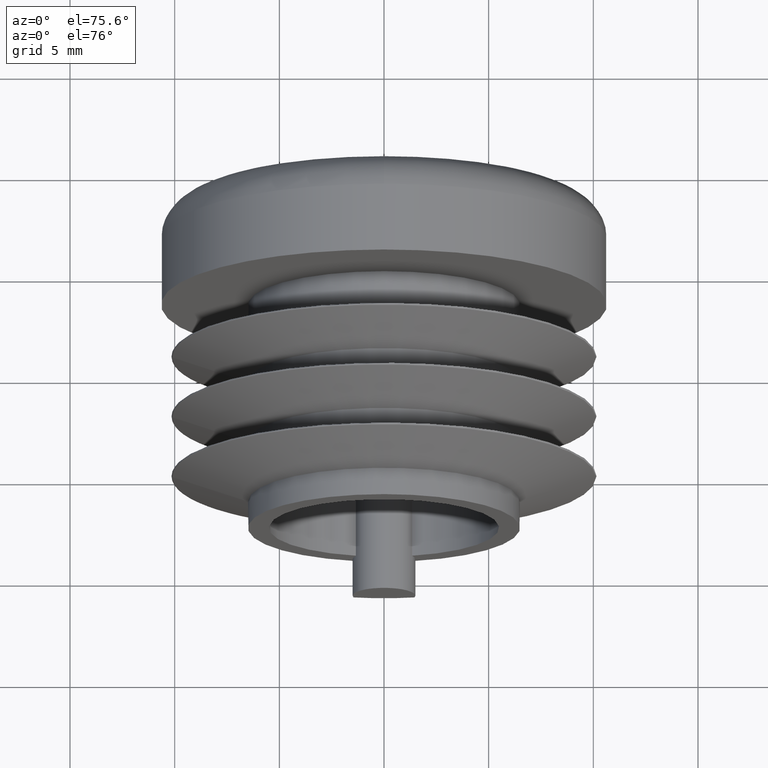
[diagram: clean part render]
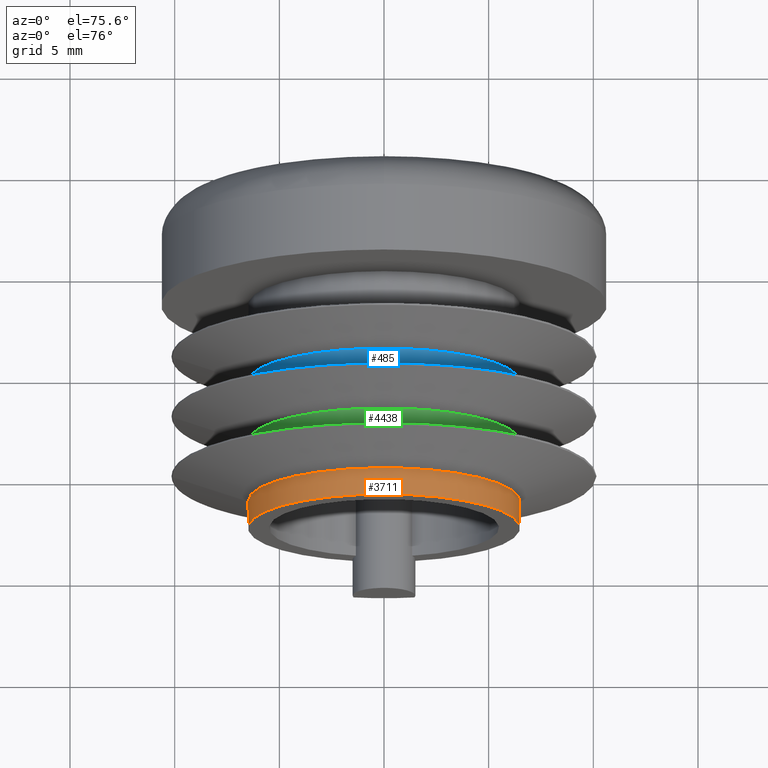
[diagram: same view with three faces highlighted in distinct colors, each labeled with its STEP entity id]
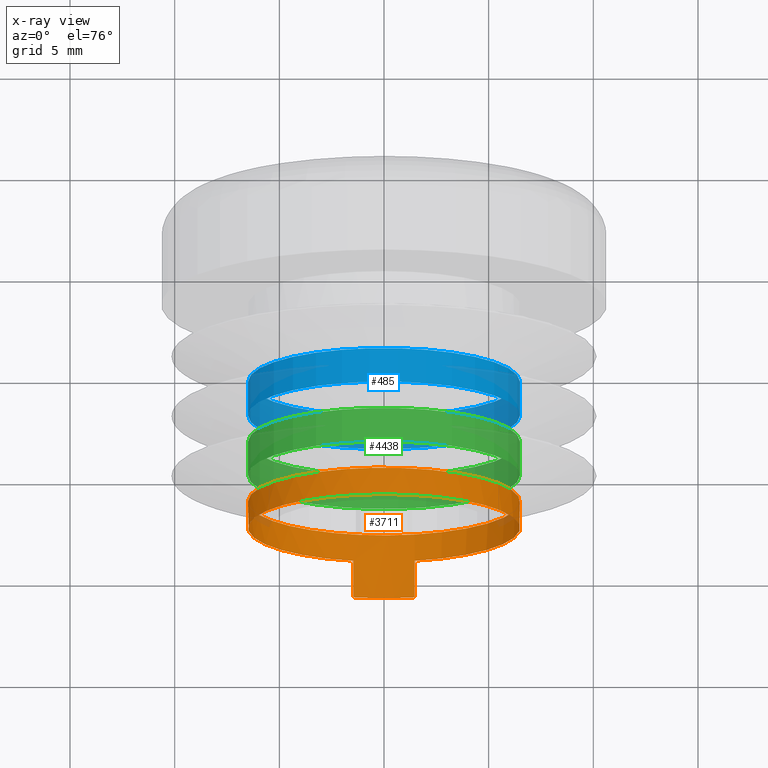
[diagram: x-ray of the same camera — body ghosted, the three highlighted faces saturated]
A machine part, auxiliary view with three faces highlighted in distinct colors.
The next image is the same camera in x-ray (body ghosted, the three faces saturated) — at least one of them is partly hidden behind the body in this view.
Their STEP definitions:

[orange] entity #3711 — the highlighted cylindrical surface (bore or boss wall) has radius 6.5 mm, axis along (-0, -1, -0).
#584 = LINE ( 'NONE', #5880, #4761 ) ;
#595 = CYLINDRICAL_SURFACE ( 'NONE', #3269, 6.499999999999999112 ) ;
#622 = VECTOR ( 'NONE', #2944, 1000.000000000000000 ) ;
#624 = EDGE_CURVE ( 'NONE', #7324, #8690, #8908, .T. ) ;
#944 = EDGE_CURVE ( 'NONE', #7324, #9304, #1581, .T. ) ;
#1166 = CARTESIAN_POINT ( 'NONE',  ( 1.462494064565357021, 0.000000000000000000, -6.333333333333333925 ) ) ;
#1396 = CARTESIAN_POINT ( 'NONE',  ( -6.500000000000012434, 1.299999999999838618, 0.000000000000000000 ) ) ;
#1581 = LINE ( 'NONE', #8050, #622 ) ;
#2475 = AXIS2_PLACEMENT_3D ( 'NONE', #2995, #6040, #9149 ) ;
#2515 = EDGE_LOOP ( 'NONE', ( #6553, #6354, #3123, #9293 ) ) ;
#2534 = DIRECTION ( 'NONE',  ( 0.000000000000000000, 0.000000000000000000, -1.000000000000000000 ) ) ;
#2944 = DIRECTION ( 'NONE',  ( -0.000000000000000000, 1.000000000000000000, -0.000000000000000000 ) ) ;
#2995 = CARTESIAN_POINT ( 'NONE',  ( -1.361677722148724505E-14, 1.299999999999906786, 0.000000000000000000 ) ) ;
#3123 = ORIENTED_EDGE ( 'NONE', *, *, #624, .F. ) ;
#3259 = ORIENTED_EDGE ( 'NONE', *, *, #5224, .F. ) ;
#3269 = AXIS2_PLACEMENT_3D ( 'NONE', #7530, #6032, #9779 ) ;
#3283 = CARTESIAN_POINT ( 'NONE',  ( 0.000000000000000000, -1.800000000000000044, 0.000000000000000000 ) ) ;
#3673 = CARTESIAN_POINT ( 'NONE',  ( 0.000000000000000000, 0.000000000000000000, 0.000000000000000000 ) ) ;
#3702 = DIRECTION ( 'NONE',  ( 0.000000000000000000, 0.000000000000000000, -1.000000000000000000 ) ) ;
#3711 = ADVANCED_FACE ( 'NONE', ( #5987, #6573 ), #595, .T. ) ;
#3948 = AXIS2_PLACEMENT_3D ( 'NONE', #3283, #6280, #2534 ) ;
#4711 = EDGE_CURVE ( 'NONE', #8690, #8068, #584, .T. ) ;
#4761 = VECTOR ( 'NONE', #5072, 1000.000000000000000 ) ;
#5072 = DIRECTION ( 'NONE',  ( -0.000000000000000000, 1.000000000000000000, -0.000000000000000000 ) ) ;
#5224 = EDGE_CURVE ( 'NONE', #8227, #8227, #8142, .T. ) ;
#5309 = AXIS2_PLACEMENT_3D ( 'NONE', #3673, #6019, #3702 ) ;
#5880 = CARTESIAN_POINT ( 'NONE',  ( 1.462494064565357021, -1.800000000000000044, -6.333333333333333925 ) ) ;
#5987 = FACE_OUTER_BOUND ( 'NONE', #8998, .T. ) ;
#6019 = DIRECTION ( 'NONE',  ( -0.000000000000000000, -1.000000000000000000, -0.000000000000000000 ) ) ;
#6032 = DIRECTION ( 'NONE',  ( -0.000000000000000000, -1.000000000000000000, -0.000000000000000000 ) ) ;
#6040 = DIRECTION ( 'NONE',  ( -1.047444401652940164E-14, 1.000000000000000000, 0.000000000000000000 ) ) ;
#6280 = DIRECTION ( 'NONE',  ( 0.000000000000000000, -1.000000000000000000, 0.000000000000000000 ) ) ;
#6354 = ORIENTED_EDGE ( 'NONE', *, *, #4711, .F. ) ;
#6553 = ORIENTED_EDGE ( 'NONE', *, *, #9577, .F. ) ;
#6573 = FACE_OUTER_BOUND ( 'NONE', #2515, .T. ) ;
#7324 = VERTEX_POINT ( 'NONE', #9313 ) ;
#7387 = CIRCLE ( 'NONE', #5309, 6.500000000000000000 ) ;
#7530 = CARTESIAN_POINT ( 'NONE',  ( 0.000000000000000000, 11.00000000000000000, 0.000000000000000000 ) ) ;
#7725 = CARTESIAN_POINT ( 'NONE',  ( 1.462494064565357021, -1.800000000000000044, -6.333333333333333925 ) ) ;
#8050 = CARTESIAN_POINT ( 'NONE',  ( -1.462494064565357021, -1.800000000000000044, -6.333333333333333925 ) ) ;
#8068 = VERTEX_POINT ( 'NONE', #1166 ) ;
#8142 = CIRCLE ( 'NONE', #2475, 6.499999999999999112 ) ;
#8227 = VERTEX_POINT ( 'NONE', #1396 ) ;
#8690 = VERTEX_POINT ( 'NONE', #7725 ) ;
#8908 = CIRCLE ( 'NONE', #3948, 6.500000000000001776 ) ;
#8998 = EDGE_LOOP ( 'NONE', ( #3259 ) ) ;
#9149 = DIRECTION ( 'NONE',  ( -1.000000000000000000, -1.047506098955225919E-14, 0.000000000000000000 ) ) ;
#9293 = ORIENTED_EDGE ( 'NONE', *, *, #944, .T. ) ;
#9304 = VERTEX_POINT ( 'NONE', #9380 ) ;
#9313 = CARTESIAN_POINT ( 'NONE',  ( -1.462494064565357021, -1.800000000000000044, -6.333333333333333925 ) ) ;
#9380 = CARTESIAN_POINT ( 'NONE',  ( -1.462494064565356577, 0.000000000000000000, -6.333333333333332149 ) ) ;
#9577 = EDGE_CURVE ( 'NONE', #8068, #9304, #7387, .T. ) ;
#9779 = DIRECTION ( 'NONE',  ( 0.000000000000000000, 0.000000000000000000, -1.000000000000000000 ) ) ;

[blue] entity #485 — the highlighted cylindrical surface (bore or boss wall) has radius 6.5 mm, axis along (-0, -1, -0).
#311 = CARTESIAN_POINT ( 'NONE',  ( 0.000000000000000000, 11.00000000000000000, 0.000000000000000000 ) ) ;
#485 = ADVANCED_FACE ( 'NONE', ( #4088, #8669 ), #1815, .T. ) ;
#691 = AXIS2_PLACEMENT_3D ( 'NONE', #1149, #4824, #4156 ) ;
#794 = VERTEX_POINT ( 'NONE', #9073 ) ;
#1149 = CARTESIAN_POINT ( 'NONE',  ( 0.000000000000000000, 5.550000000000023803, 0.000000000000000000 ) ) ;
#1815 = CYLINDRICAL_SURFACE ( 'NONE', #5620, 6.499999999999999112 ) ;
#2370 = CIRCLE ( 'NONE', #691, 6.499999999999999112 ) ;
#2535 = EDGE_LOOP ( 'NONE', ( #5906 ) ) ;
#2956 = CARTESIAN_POINT ( 'NONE',  ( -7.541599691901261449E-14, 7.200000000000088107, 0.000000000000000000 ) ) ;
#3476 = EDGE_CURVE ( 'NONE', #794, #794, #7927, .T. ) ;
#3652 = CARTESIAN_POINT ( 'NONE',  ( -6.499999999999999112, 5.549999999999956302, 0.000000000000000000 ) ) ;
#4088 = FACE_OUTER_BOUND ( 'NONE', #6346, .T. ) ;
#4156 = DIRECTION ( 'NONE',  ( -1.000000000000000000, -1.040834085586084414E-14, 0.000000000000000000 ) ) ;
#4470 = DIRECTION ( 'NONE',  ( -1.000000000000000000, -1.040834085586084414E-14, 0.000000000000000000 ) ) ;
#4824 = DIRECTION ( 'NONE',  ( 1.047444401652940164E-14, -1.000000000000000000, -0.000000000000000000 ) ) ;
#5620 = AXIS2_PLACEMENT_3D ( 'NONE', #311, #7167, #8932 ) ;
#5827 = AXIS2_PLACEMENT_3D ( 'NONE', #2956, #9110, #4470 ) ;
#5906 = ORIENTED_EDGE ( 'NONE', *, *, #3476, .F. ) ;
#6346 = EDGE_LOOP ( 'NONE', ( #8191 ) ) ;
#7167 = DIRECTION ( 'NONE',  ( -0.000000000000000000, -1.000000000000000000, -0.000000000000000000 ) ) ;
#7927 = CIRCLE ( 'NONE', #5827, 6.499999999999999112 ) ;
#8191 = ORIENTED_EDGE ( 'NONE', *, *, #8896, .F. ) ;
#8669 = FACE_OUTER_BOUND ( 'NONE', #2535, .T. ) ;
#8896 = EDGE_CURVE ( 'NONE', #9694, #9694, #2370, .T. ) ;
#8932 = DIRECTION ( 'NONE',  ( 0.000000000000000000, 0.000000000000000000, -1.000000000000000000 ) ) ;
#9073 = CARTESIAN_POINT ( 'NONE',  ( -6.500000000000074607, 7.200000000000020606, 0.000000000000000000 ) ) ;
#9110 = DIRECTION ( 'NONE',  ( -1.047444401652940164E-14, 1.000000000000000000, 0.000000000000000000 ) ) ;
#9694 = VERTEX_POINT ( 'NONE', #3652 ) ;

[green] entity #4438 — the highlighted cylindrical surface (bore or boss wall) has radius 6.5 mm, axis along (-0, -1, -0).
#164 = DIRECTION ( 'NONE',  ( -1.047444401652940164E-14, 1.000000000000000000, 0.000000000000000000 ) ) ;
#1123 = EDGE_LOOP ( 'NONE', ( #4907 ) ) ;
#1468 = CARTESIAN_POINT ( 'NONE',  ( -6.500000000000042633, 4.249999999999929834, 0.000000000000000000 ) ) ;
#1671 = CARTESIAN_POINT ( 'NONE',  ( 0.000000000000000000, 11.00000000000000000, 0.000000000000000000 ) ) ;
#2968 = CIRCLE ( 'NONE', #7893, 6.499999999999999112 ) ;
#3323 = VERTEX_POINT ( 'NONE', #1468 ) ;
#3457 = DIRECTION ( 'NONE',  ( 1.047444401652940164E-14, -1.000000000000000000, -0.000000000000000000 ) ) ;
#3693 = FACE_OUTER_BOUND ( 'NONE', #4220, .T. ) ;
#4220 = EDGE_LOOP ( 'NONE', ( #7381 ) ) ;
#4438 = ADVANCED_FACE ( 'NONE', ( #3693, #7415 ), #4641, .T. ) ;
#4641 = CYLINDRICAL_SURFACE ( 'NONE', #8265, 6.499999999999999112 ) ;
#4719 = CARTESIAN_POINT ( 'NONE',  ( -4.451638707024992819E-14, 4.249999999999997335, 0.000000000000000000 ) ) ;
#4907 = ORIENTED_EDGE ( 'NONE', *, *, #8761, .F. ) ;
#5108 = CIRCLE ( 'NONE', #9824, 6.499999999999999112 ) ;
#7381 = ORIENTED_EDGE ( 'NONE', *, *, #9425, .F. ) ;
#7415 = FACE_OUTER_BOUND ( 'NONE', #1123, .T. ) ;
#7569 = CARTESIAN_POINT ( 'NONE',  ( -6.499999999999999112, 2.599999999999865974, 0.000000000000000000 ) ) ;
#7751 = VERTEX_POINT ( 'NONE', #7569 ) ;
#7775 = DIRECTION ( 'NONE',  ( -0.000000000000000000, -1.000000000000000000, -0.000000000000000000 ) ) ;
#7893 = AXIS2_PLACEMENT_3D ( 'NONE', #4719, #164, #9299 ) ;
#8265 = AXIS2_PLACEMENT_3D ( 'NONE', #1671, #7775, #8591 ) ;
#8591 = DIRECTION ( 'NONE',  ( 0.000000000000000000, 0.000000000000000000, -1.000000000000000000 ) ) ;
#8732 = CARTESIAN_POINT ( 'NONE',  ( 0.000000000000000000, 2.599999999999933920, 0.000000000000000000 ) ) ;
#8761 = EDGE_CURVE ( 'NONE', #3323, #3323, #2968, .T. ) ;
#8833 = DIRECTION ( 'NONE',  ( -1.000000000000000000, -1.047506098955225919E-14, 0.000000000000000000 ) ) ;
#9299 = DIRECTION ( 'NONE',  ( -1.000000000000000000, -1.040834085586084414E-14, 0.000000000000000000 ) ) ;
#9425 = EDGE_CURVE ( 'NONE', #7751, #7751, #5108, .T. ) ;
#9824 = AXIS2_PLACEMENT_3D ( 'NONE', #8732, #3457, #8833 ) ;